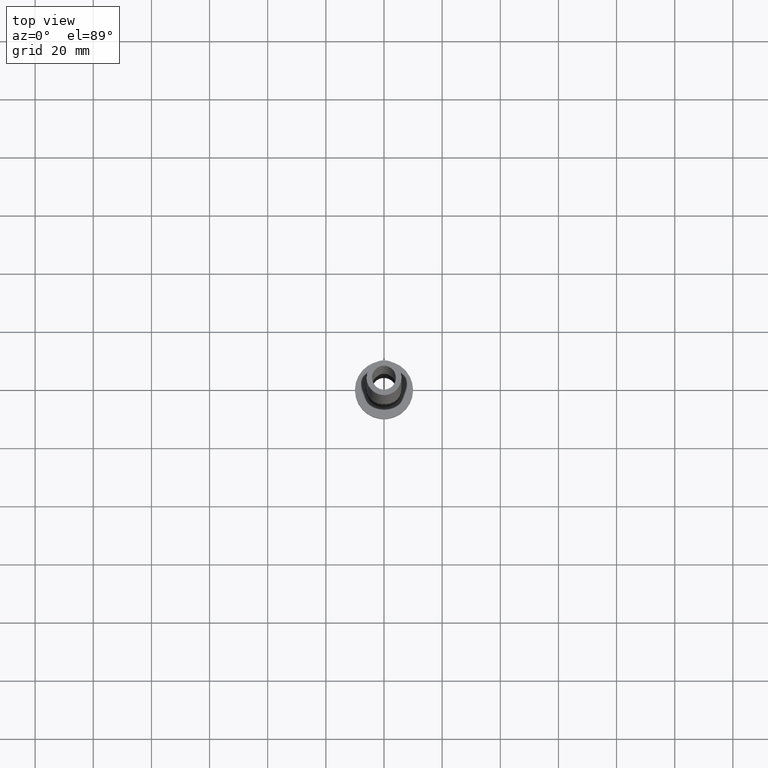
[diagram: clean part render]
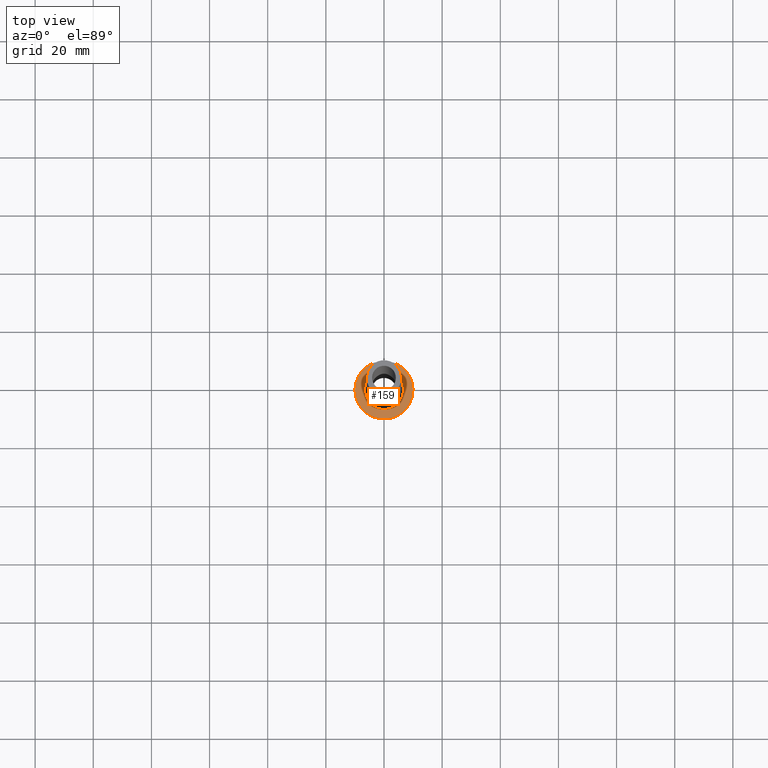
[diagram: same view with one face highlighted and labeled with its STEP entity id]
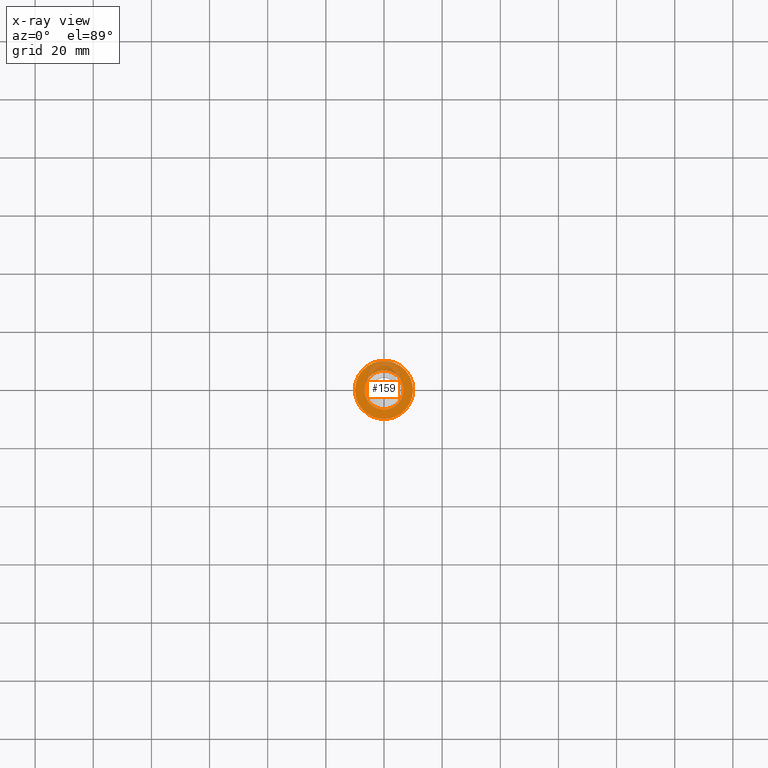
[diagram: x-ray of the same camera — body ghosted, the highlighted face saturated]
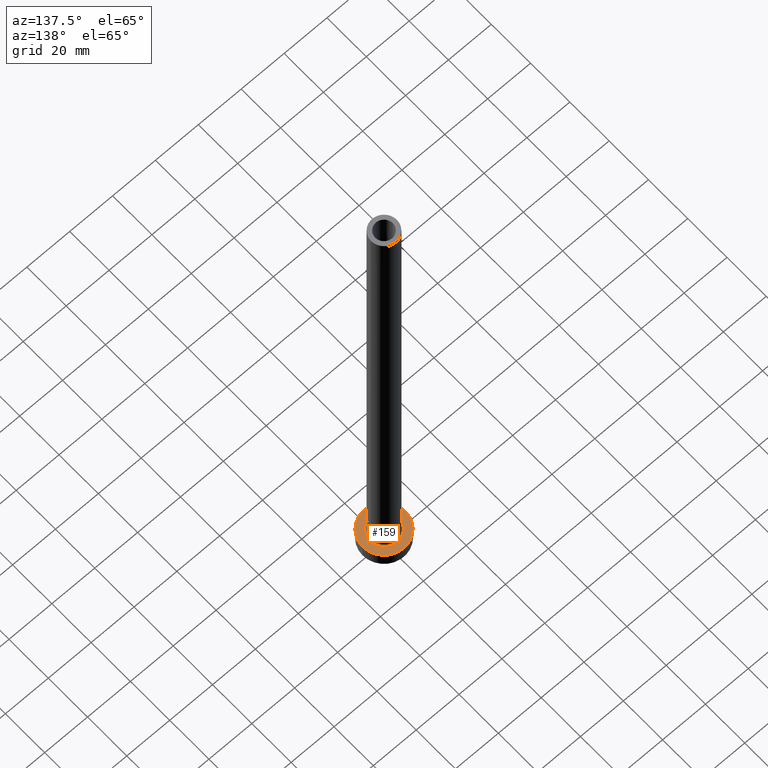
[diagram: same view with one face highlighted and labeled with its STEP entity id]
A machine part, top view. The second image highlights one B-rep face of the part: STEP entity #159.
The next image is the same camera in x-ray: the body ghosted, the highlighted face saturated — about 23% of this face is hidden behind the body in this view.
A second angle (auxiliary view) of the same face is appended — the face is thin or edge-on in the first view.
In plain terms, the highlighted planar face has unit normal (0, 0, 1).
Its self-contained STEP definition (entity closure, byte-faithful):
#13 = CARTESIAN_POINT ( 'NONE',  ( -10.00000000000000000, 0.000000000000000000, 7.000000000000000000 ) ) ;
#14 = CARTESIAN_POINT ( 'NONE',  ( 0.000000000000000000, 0.000000000000000000, 7.000000000000000000 ) ) ;
#15 = DIRECTION ( 'NONE',  ( 1.000000000000000000, 0.000000000000000000, 0.000000000000000000 ) ) ;
#28 = VERTEX_POINT ( 'NONE', #452 ) ;
#60 = FACE_OUTER_BOUND ( 'NONE', #70, .T. ) ;
#65 = CIRCLE ( 'NONE', #125, 10.00000000000000000 ) ;
#70 = EDGE_LOOP ( 'NONE', ( #354, #97 ) ) ;
#80 = VERTEX_POINT ( 'NONE', #13 ) ;
#81 = ORIENTED_EDGE ( 'NONE', *, *, #441, .T. ) ;
#97 = ORIENTED_EDGE ( 'NONE', *, *, #391, .T. ) ;
#105 = DIRECTION ( 'NONE',  ( 1.000000000000000000, 0.000000000000000000, 0.000000000000000000 ) ) ;
#122 = AXIS2_PLACEMENT_3D ( 'NONE', #420, #217, #206 ) ;
#125 = AXIS2_PLACEMENT_3D ( 'NONE', #280, #307, #105 ) ;
#126 = FACE_BOUND ( 'NONE', #457, .T. ) ;
#134 = DIRECTION ( 'NONE',  ( 0.000000000000000000, 0.000000000000000000, 1.000000000000000000 ) ) ;
#150 = ORIENTED_EDGE ( 'NONE', *, *, #273, .T. ) ;
#159 = ADVANCED_FACE ( 'NONE', ( #126, #60 ), #167, .T. ) ;
#167 = PLANE ( 'NONE',  #432 ) ;
#181 = AXIS2_PLACEMENT_3D ( 'NONE', #405, #134, #15 ) ;
#205 = EDGE_CURVE ( 'NONE', #80, #28, #399, .T. ) ;
#206 = DIRECTION ( 'NONE',  ( 1.000000000000000000, 0.000000000000000000, 0.000000000000000000 ) ) ;
#217 = DIRECTION ( 'NONE',  ( -0.000000000000000000, -0.000000000000000000, -1.000000000000000000 ) ) ;
#240 = DIRECTION ( 'NONE',  ( 1.000000000000000000, 0.000000000000000000, 0.000000000000000000 ) ) ;
#247 = DIRECTION ( 'NONE',  ( -0.000000000000000000, -0.000000000000000000, -1.000000000000000000 ) ) ;
#255 = CIRCLE ( 'NONE', #122, 6.700000000000001066 ) ;
#268 = CARTESIAN_POINT ( 'NONE',  ( 0.000000000000000000, 0.000000000000000000, 7.000000000000000000 ) ) ;
#273 = EDGE_CURVE ( 'NONE', #438, #321, #255, .T. ) ;
#276 = DIRECTION ( 'NONE',  ( 0.000000000000000000, 0.000000000000000000, 1.000000000000000000 ) ) ;
#280 = CARTESIAN_POINT ( 'NONE',  ( 0.000000000000000000, 0.000000000000000000, 7.000000000000000000 ) ) ;
#307 = DIRECTION ( 'NONE',  ( 0.000000000000000000, 0.000000000000000000, 1.000000000000000000 ) ) ;
#321 = VERTEX_POINT ( 'NONE', #388 ) ;
#354 = ORIENTED_EDGE ( 'NONE', *, *, #205, .T. ) ;
#378 = CARTESIAN_POINT ( 'NONE',  ( -6.700000000000001066, 8.205133554287267548E-16, 7.000000000000006217 ) ) ;
#381 = CIRCLE ( 'NONE', #435, 6.700000000000001066 ) ;
#388 = CARTESIAN_POINT ( 'NONE',  ( 6.700000000000001066, 0.000000000000000000, 7.000000000000006217 ) ) ;
#391 = EDGE_CURVE ( 'NONE', #28, #80, #65, .T. ) ;
#399 = CIRCLE ( 'NONE', #181, 10.00000000000000000 ) ;
#405 = CARTESIAN_POINT ( 'NONE',  ( 0.000000000000000000, 0.000000000000000000, 7.000000000000000000 ) ) ;
#408 = DIRECTION ( 'NONE',  ( 1.000000000000000000, 0.000000000000000000, -0.000000000000000000 ) ) ;
#420 = CARTESIAN_POINT ( 'NONE',  ( 0.000000000000000000, 0.000000000000000000, 7.000000000000000000 ) ) ;
#432 = AXIS2_PLACEMENT_3D ( 'NONE', #268, #276, #408 ) ;
#435 = AXIS2_PLACEMENT_3D ( 'NONE', #14, #247, #240 ) ;
#438 = VERTEX_POINT ( 'NONE', #378 ) ;
#441 = EDGE_CURVE ( 'NONE', #321, #438, #381, .T. ) ;
#452 = CARTESIAN_POINT ( 'NONE',  ( 10.00000000000000000, 1.224646799147353256E-15, 7.000000000000000000 ) ) ;
#457 = EDGE_LOOP ( 'NONE', ( #81, #150 ) ) ;